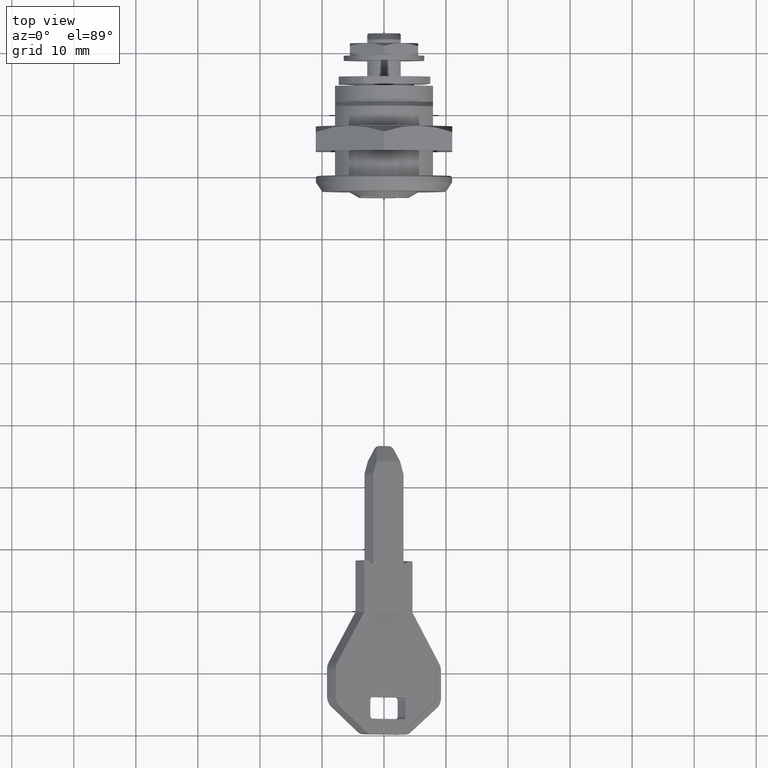
[diagram: clean part render]
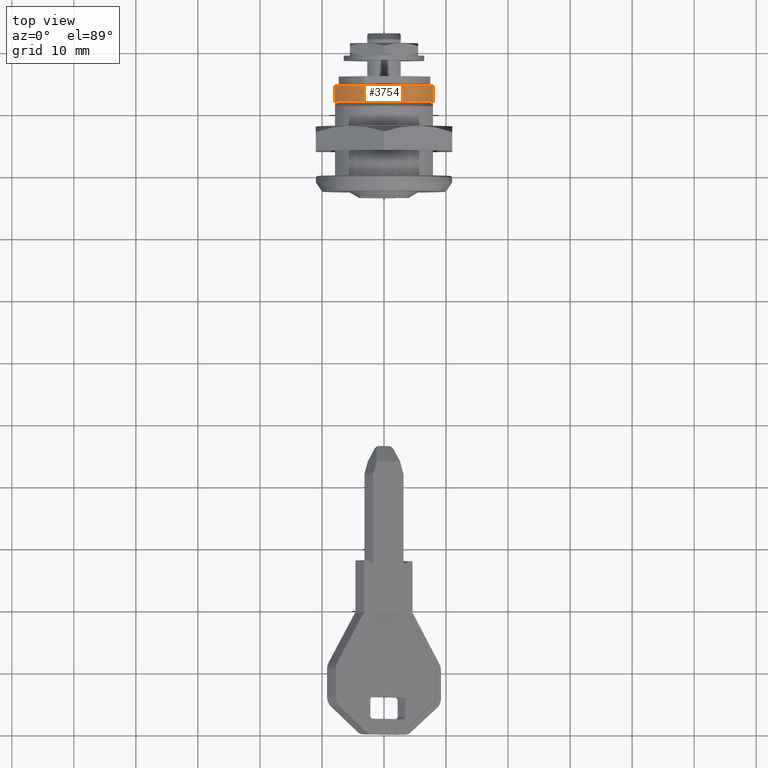
[diagram: same view with one face highlighted and labeled with its STEP entity id]
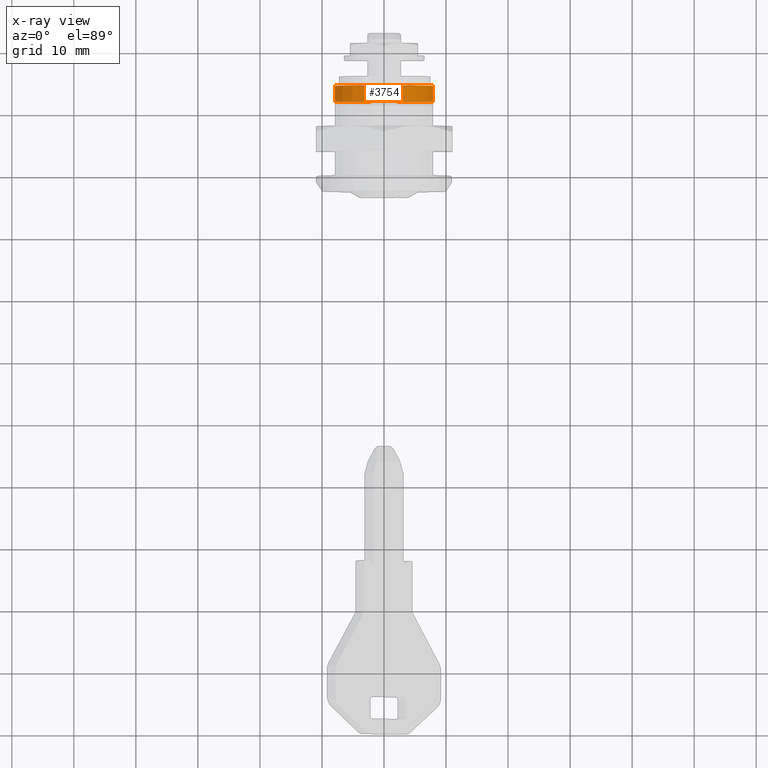
[diagram: x-ray of the same camera — body ghosted, the highlighted face saturated]
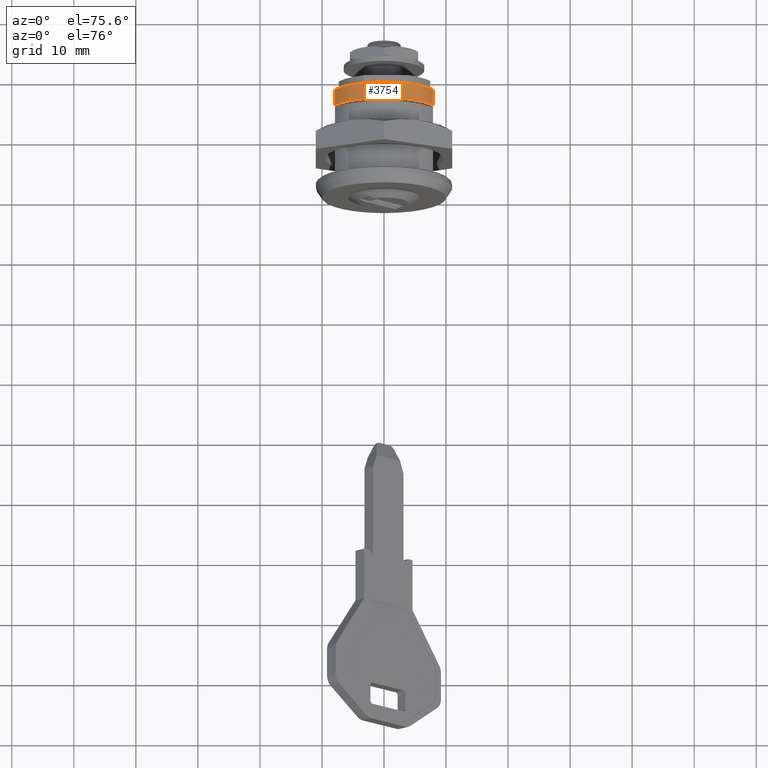
[diagram: same view with one face highlighted and labeled with its STEP entity id]
A machine part, top view. The second image highlights one B-rep face of the part: STEP entity #3754.
The next image is the same camera in x-ray: the body ghosted, the highlighted face saturated — about 0% of this face is hidden behind the body in this view.
A second angle (auxiliary view) of the same face is appended — the face is thin or edge-on in the first view.
In plain terms, the highlighted face is a freeform B-spline surface patch.
Its self-contained STEP definition (entity closure, byte-faithful):
#3576=CARTESIAN_POINT('',(-7.900000000000000,11.900000000000000,3.876854394996330));
#3577=VERTEX_POINT('',#3576);
#3603=CARTESIAN_POINT('',(7.900000000000001,11.900000000000000,3.876854394996035));
#3604=VERTEX_POINT('',#3603);
#3612=CARTESIAN_POINT('',(-7.900000000000000,11.900000000000000,3.876854394996330));
#3613=CARTESIAN_POINT('',(-7.540202017760373,11.899999999999990,4.610804323302716));
#3614=CARTESIAN_POINT('',(-6.888767539685108,11.900000000000009,5.571256968277504));
#3615=CARTESIAN_POINT('',(-5.742122808235917,11.899999999999990,6.703955035819501));
#3616=CARTESIAN_POINT('',(-4.513222685874943,11.900000000000100,7.627625357151146));
#3617=CARTESIAN_POINT('',(-2.952294262730570,11.899999999999951,8.361909060235245));
#3618=CARTESIAN_POINT('',(-1.428112033191889,11.900000000000031,8.712828042340979));
#3619=CARTESIAN_POINT('',(-0.052177681063180,11.900000000000050,8.832966117792980));
#3620=CARTESIAN_POINT('',(1.254010734774161,11.899999999999819,8.753260368142399));
#3621=CARTESIAN_POINT('',(2.824842133339905,11.899999999999940,8.384224121981811));
#3622=CARTESIAN_POINT('',(4.144270575191088,11.900000000000530,7.811942817946232));
#3623=CARTESIAN_POINT('',(5.408292897867499,11.899999999999491,6.985409955282367));
#3624=CARTESIAN_POINT('',(6.724985431216554,11.900000000000439,5.803803184233239));
#3625=CARTESIAN_POINT('',(7.517755151143333,11.899999999999819,4.656701518793954));
#3626=CARTESIAN_POINT('',(7.900000000000001,11.900000000000000,3.876854394996035));
#3627=B_SPLINE_CURVE_WITH_KNOTS('',3,(#3612,#3613,#3614,#3615,#3616,#3617,#3618,#3619,#3620,#3621,#3622,#3623,#3624,#3625,#3626),.UNSPECIFIED.,.F.,.U.,(4,1,1,1,1,1,1,1,1,1,1,1,4),(0.000000215441187,2.452052553107233,3.448230392030631,4.827555291212041,7.049784144704333,8.582346024600303,9.501911907916146,11.187635556981039,12.490303144286999,14.329401940322750,15.478836826352561,17.011415681786769,19.616727448247040),.UNSPECIFIED.);
#3628=EDGE_CURVE('',#3577,#3604,#3627,.T.);
#3705=CARTESIAN_POINT('',(7.998777084401919,11.835000000000001,3.668728002189282));
#3706=CARTESIAN_POINT('',(7.998777084401919,14.566625000000000,3.668728002189282));
#3707=CARTESIAN_POINT('',(-0.241320921967038,11.834999999999999,21.634275480018335));
#3708=CARTESIAN_POINT('',(-0.241320921967038,14.566625000000002,21.634275480018335));
#3709=CARTESIAN_POINT('',(-8.078622791526072,11.835000000000001,3.489391607750043));
#3710=CARTESIAN_POINT('',(-8.078622791526071,14.566625000000000,3.489391607750043));
#3718=(BOUNDED_SURFACE()B_SPLINE_SURFACE(1,2,((#3705,#3707,#3709),(#3706,#3708,#3710)),.UNSPECIFIED.,.F.,.F.,.U.)B_SPLINE_SURFACE_WITH_KNOTS((2,2),(3,3),(0.0,2.731625000000003),(0.0,22.859147280552360),.UNSPECIFIED.)GEOMETRIC_REPRESENTATION_ITEM()RATIONAL_B_SPLINE_SURFACE(((1.0,0.406736643075800,1.0),(1.0,0.406736643075800,1.0)))REPRESENTATION_ITEM('')SURFACE());
#3719=CARTESIAN_POINT('',(-7.900000000000000,14.500000000000000,3.876854394996330));
#3720=VERTEX_POINT('',#3719);
#3721=CARTESIAN_POINT('',(7.900000000000001,14.500000000000000,3.876854394996035));
#3722=VERTEX_POINT('',#3721);
#3723=CARTESIAN_POINT('',(-7.900000000000000,14.500000000000000,3.876854394996330));
#3724=CARTESIAN_POINT('',(-7.506563818922546,14.500000000000020,4.679692042748419));
#3725=CARTESIAN_POINT('',(-6.737754716530133,14.500000000000020,5.781594767925498));
#3726=CARTESIAN_POINT('',(-5.408618570401923,14.499999999999989,6.984884583439216));
#3727=CARTESIAN_POINT('',(-4.382238221703053,14.500000000000011,7.662362302434109));
#3728=CARTESIAN_POINT('',(-3.206477821377586,14.500000000000011,8.228074088406723));
#3729=CARTESIAN_POINT('',(-1.885749168315228,14.499999999999790,8.643565284181014));
#3730=CARTESIAN_POINT('',(-0.282691636608629,14.500000000000780,8.847077023052606));
#3731=CARTESIAN_POINT('',(1.254011016460623,14.499999999999041,8.753251045261402));
#3732=CARTESIAN_POINT('',(2.824843665193848,14.500000000000600,8.384227921465991));
#3733=CARTESIAN_POINT('',(4.144263982487052,14.499999999999970,7.811935624455138));
#3734=CARTESIAN_POINT('',(5.494018280316265,14.499999999999730,6.929411315625335));
#3735=CARTESIAN_POINT('',(6.792043363993655,14.500000000000290,5.723040081455538));
#3736=CARTESIAN_POINT('',(7.562615710359946,14.499999999999901,4.564866641185724));
#3737=CARTESIAN_POINT('',(7.900000000000001,14.500000000000000,3.876854394996035));
#3738=B_SPLINE_CURVE_WITH_KNOTS('',3,(#3723,#3724,#3725,#3726,#3727,#3728,#3729,#3730,#3731,#3732,#3733,#3734,#3735,#3736,#3737),.UNSPECIFIED.,.F.,.U.,(4,1,1,1,1,1,1,1,1,1,1,1,4),(0.000000215443745,2.681969765707287,3.984638022983988,5.363952732857751,6.360119034062493,7.892693089975410,9.501911907917007,11.187635556981570,12.490303144287360,14.329401940322960,15.478836826352749,17.317913709894260,19.616727448247040),.UNSPECIFIED.);
#3739=EDGE_CURVE('',#3720,#3722,#3738,.T.);
#3740=ORIENTED_EDGE('',*,*,#3739,.F.);
#3741=CARTESIAN_POINT('',(-7.900000000000000,11.900000000000000,3.876854394996330));
#3742=CARTESIAN_POINT('',(-7.900000000000000,14.500000000000000,3.876854394996330));
#3743=QUASI_UNIFORM_CURVE('',1,(#3741,#3742),.UNSPECIFIED.,.F.,.U.);
#3744=EDGE_CURVE('',#3577,#3720,#3743,.T.);
#3745=ORIENTED_EDGE('',*,*,#3744,.F.);
#3746=ORIENTED_EDGE('',*,*,#3628,.T.);
#3747=CARTESIAN_POINT('',(7.900000000000001,14.500000000000000,3.876854394996035));
#3748=CARTESIAN_POINT('',(7.900000000000001,11.900000000000000,3.876854394996035));
#3749=QUASI_UNIFORM_CURVE('',1,(#3747,#3748),.UNSPECIFIED.,.F.,.U.);
#3750=EDGE_CURVE('',#3722,#3604,#3749,.T.);
#3751=ORIENTED_EDGE('',*,*,#3750,.F.);
#3752=EDGE_LOOP('',(#3740,#3745,#3746,#3751));
#3753=FACE_OUTER_BOUND('',#3752,.T.);
#3754=ADVANCED_FACE('',(#3753),#3718,.T.);